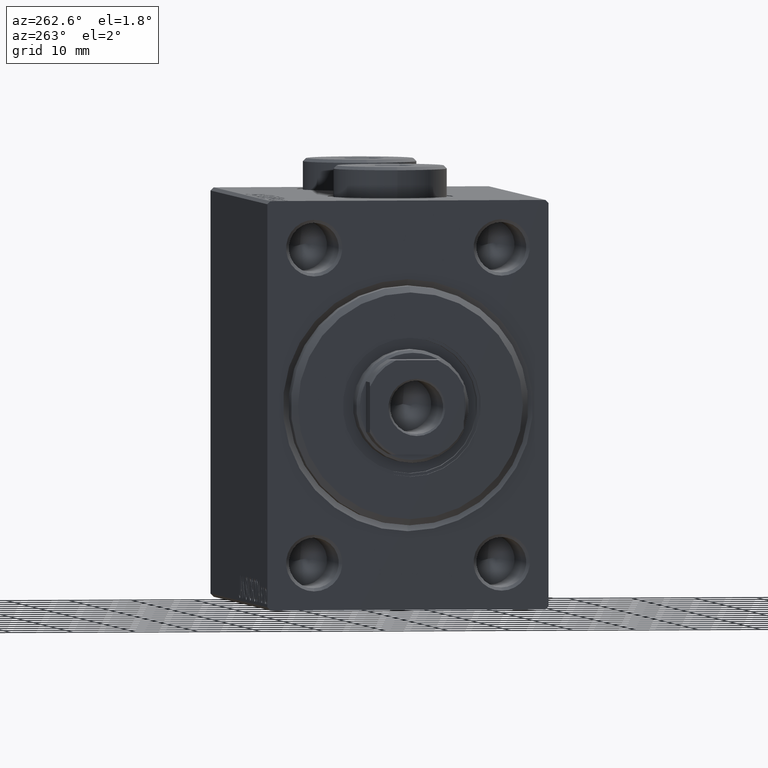
[diagram: clean part render]
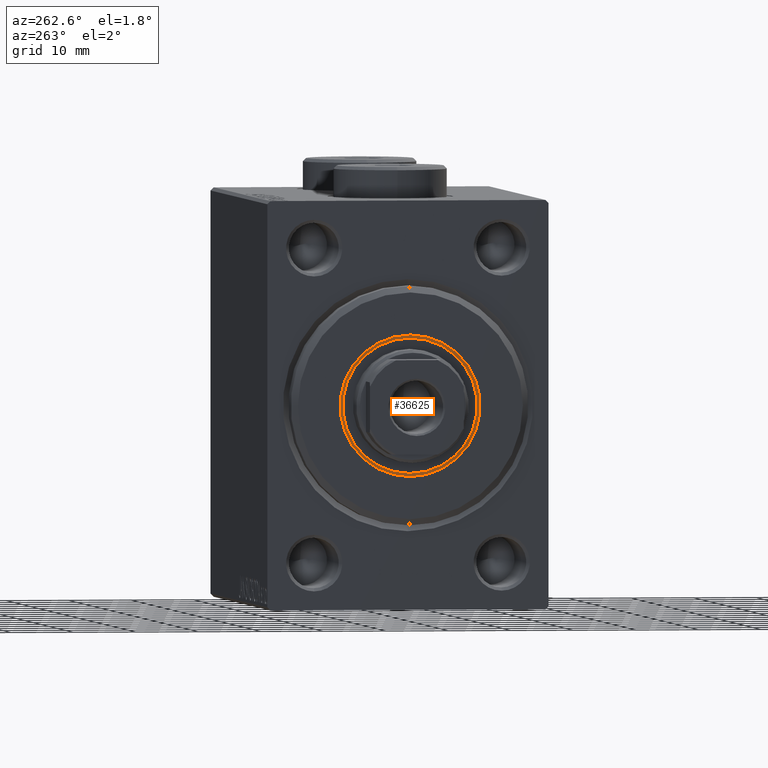
[diagram: same view with one face highlighted and labeled with its STEP entity id]
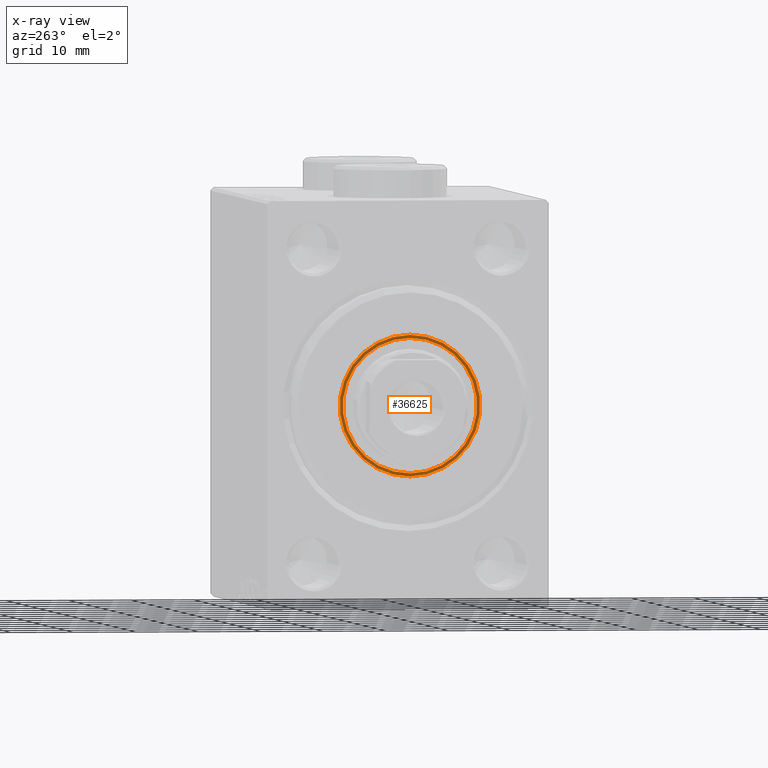
[diagram: x-ray of the same camera — body ghosted, the highlighted face saturated]
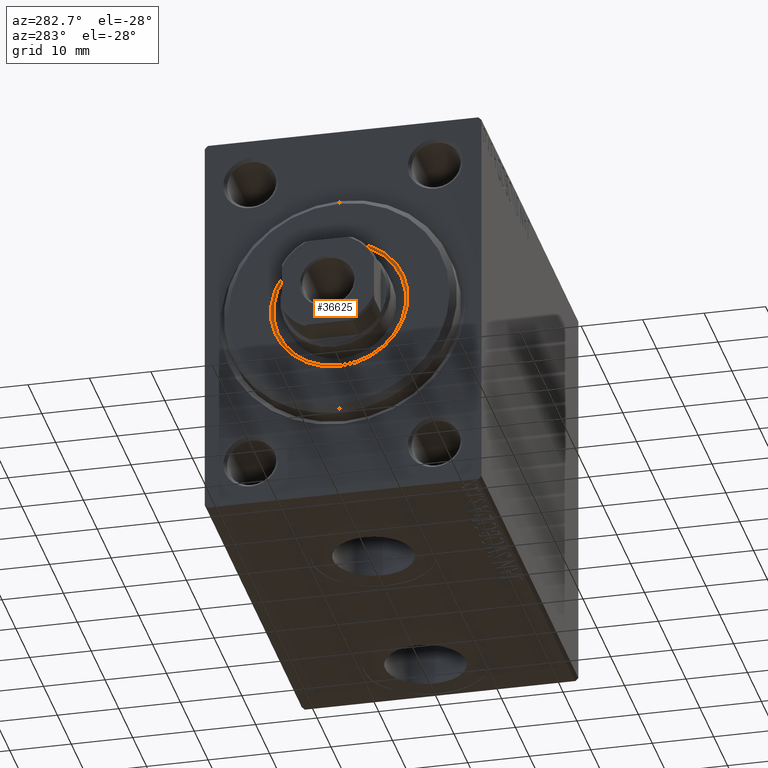
[diagram: same view with one face highlighted and labeled with its STEP entity id]
A machine part, auxiliary view. The second image highlights one B-rep face of the part: STEP entity #36625.
The next image is the same camera in x-ray: the body ghosted, the highlighted face saturated — about 0% of this face is hidden behind the body in this view.
A second angle (auxiliary view) of the same face is appended — the face is thin or edge-on in the first view.
In plain terms, the highlighted planar face has unit normal (-1, 0, 0).
Its self-contained STEP definition (entity closure, byte-faithful):
#733 = EDGE_CURVE ( 'NONE', #41972, #45319, #19464, .T. ) ;
#1457 = CARTESIAN_POINT ( 'NONE',  ( 2.500000000000000000, 1.377727649040772586E-15, 11.25000000000000178 ) ) ;
#2820 = DIRECTION ( 'NONE',  ( 1.000000000000000000, 0.000000000000000000, 0.000000000000000000 ) ) ;
#3452 = AXIS2_PLACEMENT_3D ( 'NONE', #9478, #2820, #37405 ) ;
#4324 = ORIENTED_EDGE ( 'NONE', *, *, #15609, .T. ) ;
#4364 = ORIENTED_EDGE ( 'NONE', *, *, #36930, .T. ) ;
#4559 = DIRECTION ( 'NONE',  ( 0.000000000000000000, 0.000000000000000000, -1.000000000000000000 ) ) ;
#4573 = AXIS2_PLACEMENT_3D ( 'NONE', #25071, #18615, #25750 ) ;
#5285 = DIRECTION ( 'NONE',  ( -1.000000000000000000, -0.000000000000000000, -0.000000000000000000 ) ) ;
#5394 = CARTESIAN_POINT ( 'NONE',  ( 2.500000000000000000, 0.000000000000000000, -11.25000000000000178 ) ) ;
#7551 = DIRECTION ( 'NONE',  ( 1.000000000000000000, 0.000000000000000000, 0.000000000000000000 ) ) ;
#8219 = FACE_BOUND ( 'NONE', #24911, .T. ) ;
#9478 = CARTESIAN_POINT ( 'NONE',  ( 2.500000000000000000, 0.000000000000000000, 0.000000000000000000 ) ) ;
#13139 = DIRECTION ( 'NONE',  ( -1.000000000000000000, -0.000000000000000000, -0.000000000000000000 ) ) ;
#14311 = AXIS2_PLACEMENT_3D ( 'NONE', #20297, #13139, #30218 ) ;
#14483 = VERTEX_POINT ( 'NONE', #1457 ) ;
#15152 = PLANE ( 'NONE',  #4573 ) ;
#15609 = EDGE_CURVE ( 'NONE', #45319, #41972, #28915, .T. ) ;
#17618 = ORIENTED_EDGE ( 'NONE', *, *, #29527, .T. ) ;
#18615 = DIRECTION ( 'NONE',  ( 1.000000000000000000, 0.000000000000000000, 0.000000000000000000 ) ) ;
#19464 = CIRCLE ( 'NONE', #14311, 10.75000000000000000 ) ;
#19808 = CARTESIAN_POINT ( 'NONE',  ( 2.500000000000000000, 0.000000000000000000, 0.000000000000000000 ) ) ;
#20297 = CARTESIAN_POINT ( 'NONE',  ( 2.500000000000000000, 0.000000000000000000, 0.000000000000000000 ) ) ;
#20796 = AXIS2_PLACEMENT_3D ( 'NONE', #36174, #7551, #4559 ) ;
#24911 = EDGE_LOOP ( 'NONE', ( #4324, #42302 ) ) ;
#25071 = CARTESIAN_POINT ( 'NONE',  ( 2.500000000000000000, 0.000000000000000000, 0.000000000000000000 ) ) ;
#25750 = DIRECTION ( 'NONE',  ( 0.000000000000000000, 0.000000000000000000, -1.000000000000000000 ) ) ;
#26492 = DIRECTION ( 'NONE',  ( 0.000000000000000000, 0.000000000000000000, -1.000000000000000000 ) ) ;
#28915 = CIRCLE ( 'NONE', #36213, 10.75000000000000000 ) ;
#29527 = EDGE_CURVE ( 'NONE', #29914, #14483, #35887, .T. ) ;
#29914 = VERTEX_POINT ( 'NONE', #5394 ) ;
#30218 = DIRECTION ( 'NONE',  ( 0.000000000000000000, 0.000000000000000000, -1.000000000000000000 ) ) ;
#35887 = CIRCLE ( 'NONE', #3452, 11.25000000000000178 ) ;
#36174 = CARTESIAN_POINT ( 'NONE',  ( 2.500000000000000000, 0.000000000000000000, 0.000000000000000000 ) ) ;
#36213 = AXIS2_PLACEMENT_3D ( 'NONE', #19808, #5285, #26492 ) ;
#36625 = ADVANCED_FACE ( 'NONE', ( #8219, #42835 ), #15152, .T. ) ;
#36930 = EDGE_CURVE ( 'NONE', #14483, #29914, #40678, .T. ) ;
#37061 = CARTESIAN_POINT ( 'NONE',  ( 2.500000000000000000, 1.316495309083404223E-15, -10.75000000000000000 ) ) ;
#37084 = CARTESIAN_POINT ( 'NONE',  ( 2.500000000000000000, 0.000000000000000000, 10.75000000000000000 ) ) ;
#37405 = DIRECTION ( 'NONE',  ( 0.000000000000000000, 0.000000000000000000, -1.000000000000000000 ) ) ;
#40678 = CIRCLE ( 'NONE', #20796, 11.25000000000000178 ) ;
#41972 = VERTEX_POINT ( 'NONE', #37061 ) ;
#42302 = ORIENTED_EDGE ( 'NONE', *, *, #733, .T. ) ;
#42835 = FACE_OUTER_BOUND ( 'NONE', #44615, .T. ) ;
#44615 = EDGE_LOOP ( 'NONE', ( #17618, #4364 ) ) ;
#45319 = VERTEX_POINT ( 'NONE', #37084 ) ;